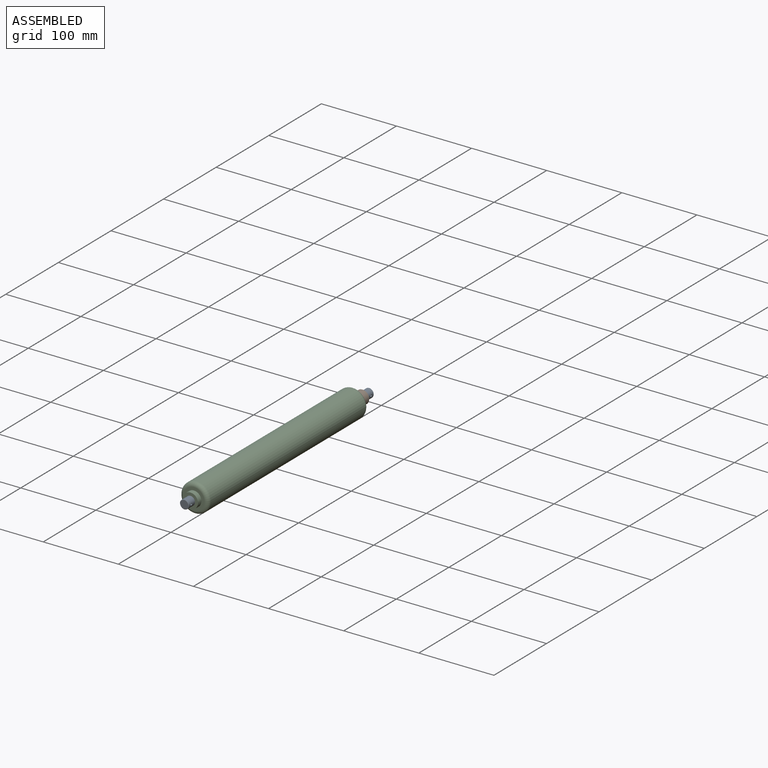
[diagram: assembled view]
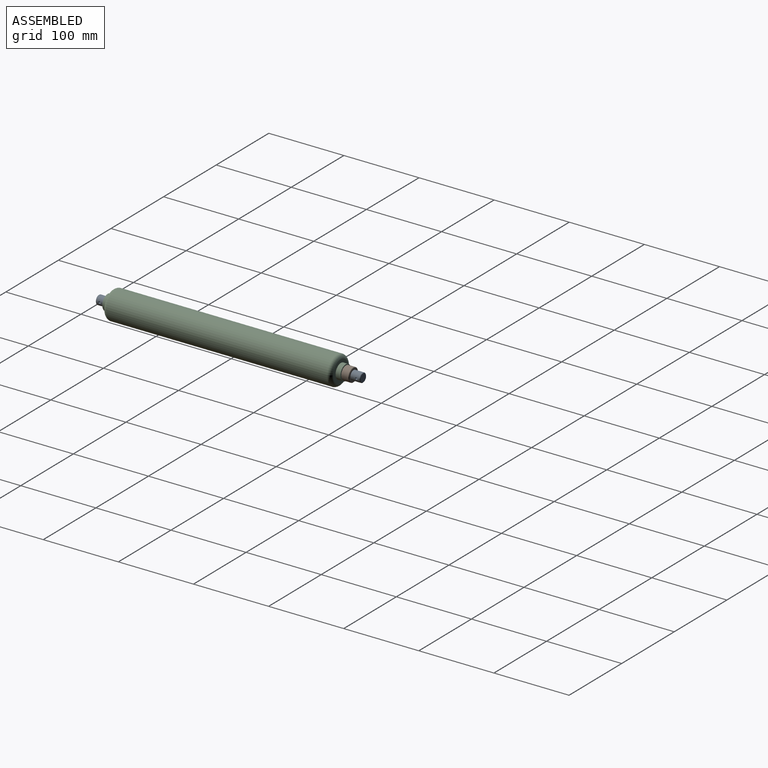
[diagram: assembled view, second angle]
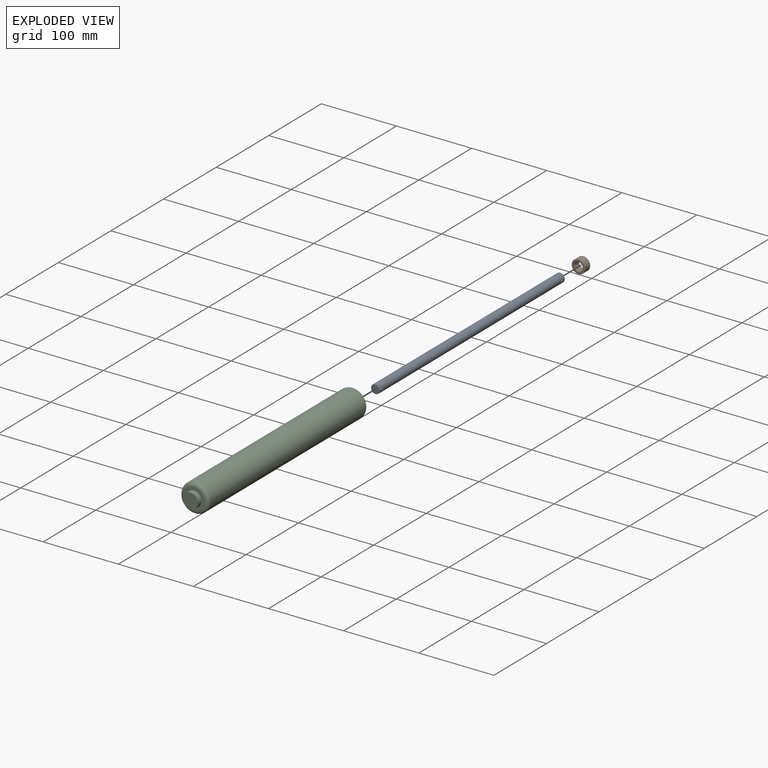
[diagram: exploded view]
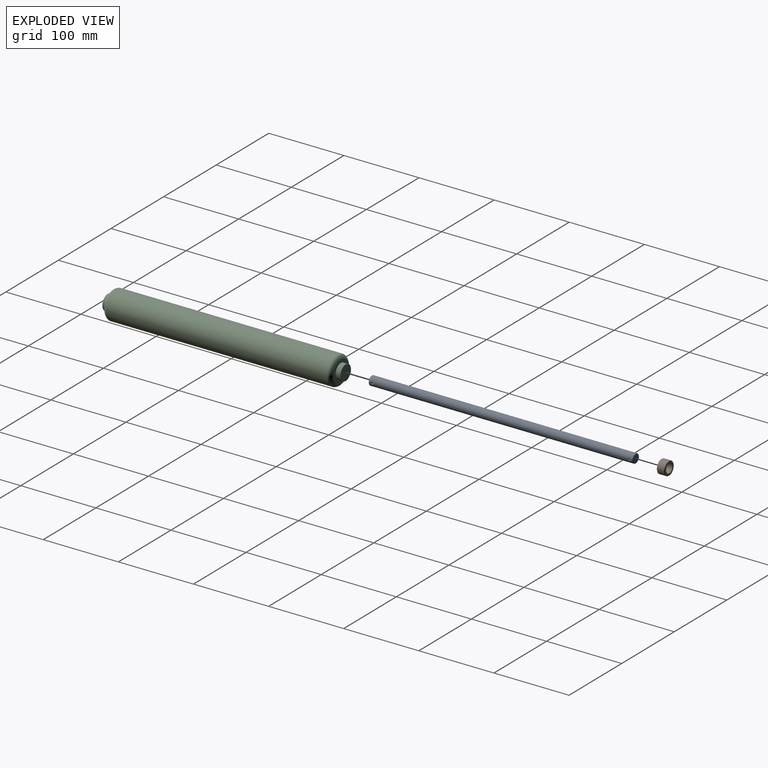
[diagram: exploded view, second angle]
ASSEMBLY  parts=3 mates=2
PART A: 7 faces, bbox 352x12x12 mm
  f0: cylinder r=6mm len=351mm, axis (-1,0,0), area 13202.8mm2, adj f2,f3,f5,f6
  f1: plane 11x11mm, normal (-1,0,0), area 95mm2, adj f6
  f2: cylinder r=1.5mm len=12mm, axis (0,0,1), area 113.1mm2, adj f0
  f3: cylinder r=1.5mm len=12mm, axis (0,0,1), area 113.1mm2, adj f0
  f4: plane 11x11mm, normal (1,0,0), area 95mm2, adj f5
  f5: cone r=6mm half-angle=45deg, axis (-1,0,0), area 25.5mm2, adj f0,f4
  f6: cone r=5.5mm half-angle=45deg, axis (1,0,0), area 25.5mm2, adj f0,f1
PART B: 6 faces, bbox 18x10.5x18 mm
  f0: cylinder r=6mm len=12mm, axis (0,1,0), area 395.8mm2, adj f2,f3
  f1: cylinder r=9mm len=18mm, axis (0,1,0), area 537.2mm2, adj f4,f5
  f2: plane 17x17mm, normal (0,-1,0), area 113.9mm2, adj f0,f5
  f3: plane 17x17mm, normal (0,1,0), area 113.9mm2, adj f0,f4
  f4: cone r=9mm half-angle=45deg, axis (0,-1,0), area 38.9mm2, adj f1,f3
  f5: cone r=8.5mm half-angle=45deg, axis (0,1,0), area 38.9mm2, adj f1,f2
PART C: 9 faces, bbox 41.1x317x41.1 mm
  f0: cylinder r=10mm len=20mm, axis (0,1,0), area 408.4mm2, adj f1,f4
  f1: plane 20x20mm, normal (0,-1,0), area 314.2mm2, adj f0
  f2: cylinder r=19mm len=294mm, axis (0,-1,0), area 35097.9mm2, adj f7,f8
  f3: plane 28x28mm, normal (0,1,0), area 301.6mm2, adj f5,f8
  f4: plane 28x28mm, normal (0,-1,0), area 301.6mm2, adj f0,f7
  f5: cylinder r=10mm len=20mm, axis (0,-1,0), area 408.4mm2, adj f3,f6
  f6: plane 20x20mm, normal (0,1,0), area 314.2mm2, adj f5
  f7: torus R=14mm, axis (0,-1,0), area 848mm2, adj f2,f4
  f8: torus R=14mm, axis (0,-1,0), area 848mm2, adj f2,f3
PLACE A rot(axis=(-0.58,0.58,-0.58),120deg) t=(0.73,0.34,0.05)mm
PLACE B t=(0.73,163.59,0.05)mm
PLACE C t=(0.73,-157.41,0.05)mm
MATE revolute C.f0 <-> B.f0  axis (0,1,0) through (0.73,153.09,0.05)mm
MATE revolute A.f0 <-> C.f0  axis (0,-1,0) through (0.73,-175.66,0.05)mm
